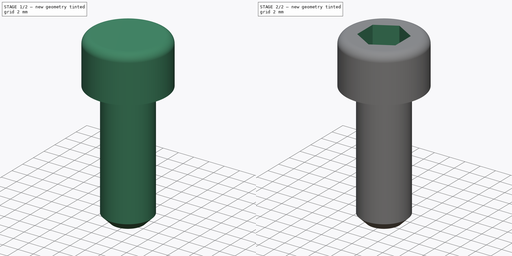
[diagram: build sequence overview — one tinted view per stage of 2, left to right]
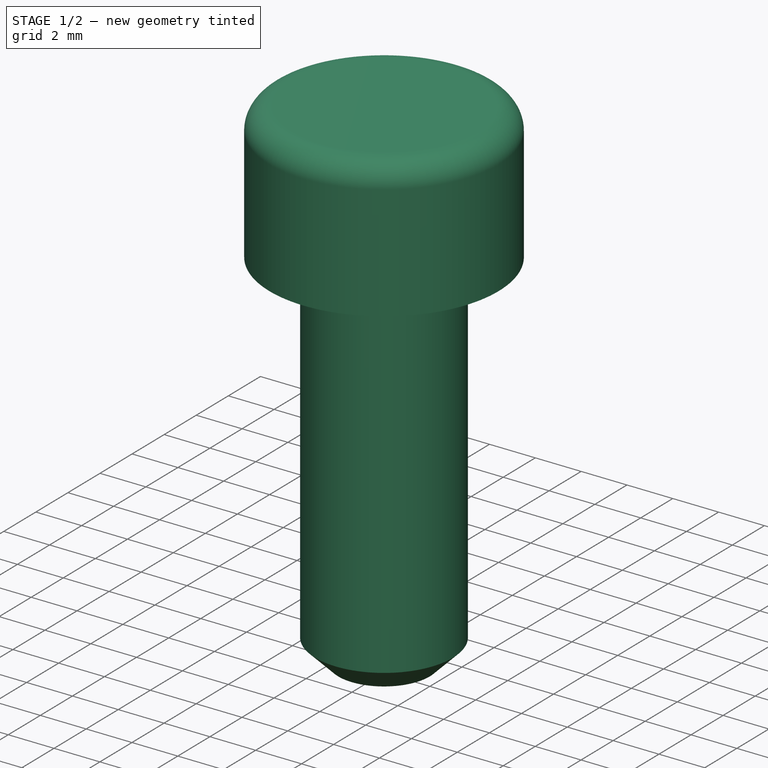
[diagram: stage 1 of 2 — iso view after this stage's code; geometry added in this stage tinted green]
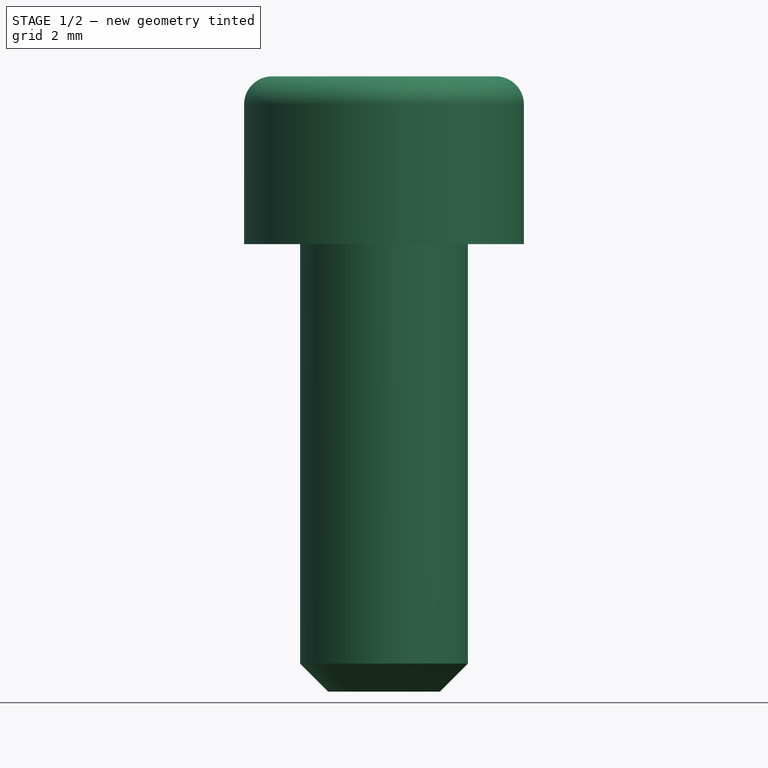
[diagram: stage 1 of 2 — front view after this stage's code; geometry added in this stage tinted green]
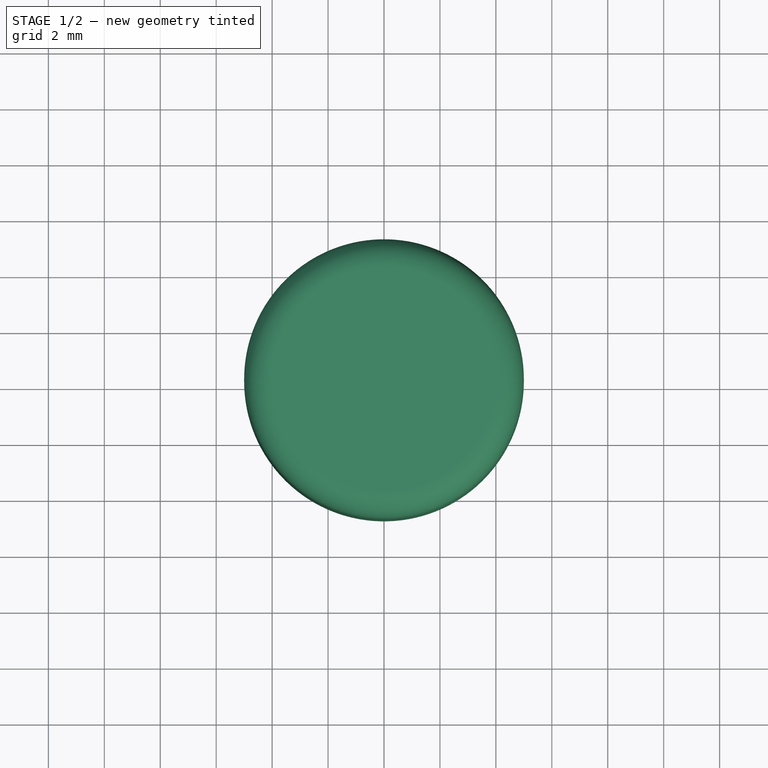
[diagram: stage 1 of 2 — top view after this stage's code; geometry added in this stage tinted green]
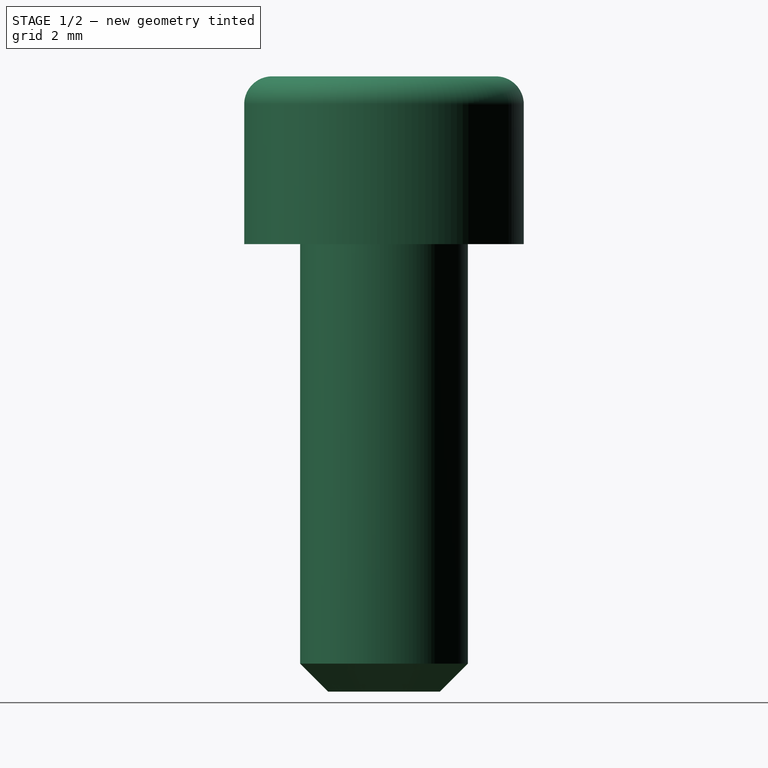
[diagram: stage 1 of 2 — right view after this stage's code; geometry added in this stage tinted green]
FCSTD DOCUMENT  (FreeCAD 0.20R29126 (Git))
Label: electric-motor-endcap-bolt
License: All rights reserved
LicenseURL: http://en.wikipedia.org/wiki/All_rights_reserved
objects: Sketcher::SketchObject×2, PartDesign::Revolution×1, PartDesign::Fillet×1, PartDesign::Plane×1, PartDesign::Pocket×1, PartDesign::Body×1
note: 10 computed .brp shape members not serialized (recipe doc carries the construction recipe); baked Part::Feature solids carry a one-line shape summary decoded from their .brp

FEATURE [Sketcher::SketchObject] Sketch
  FullyConstrained = true
  MapMode = 5
  Placement = pos=(0,0,0) rot=(1,0,0;1.5708rad)
  Support = -> [XZ_Plane]
  sketch-geometry (8):
    g0: LineSegment StartX=0 StartY=0 StartZ=0 EndX=0 EndY=22 EndZ=0
    g1: LineSegment StartX=0 StartY=22 StartZ=0 EndX=5 EndY=22 EndZ=0
    g2: LineSegment StartX=5 StartY=22 StartZ=0 EndX=5 EndY=16 EndZ=0
    g3: LineSegment StartX=5 StartY=16 StartZ=0 EndX=3 EndY=16 EndZ=0
    g4: LineSegment StartX=2 StartY=0 StartZ=0 EndX=0 EndY=0 EndZ=0
    g5: LineSegment StartX=3 StartY=1 StartZ=0 EndX=2 EndY=0 EndZ=0
    g6: LineSegment StartX=3 StartY=16 StartZ=0 EndX=3 EndY=12 EndZ=0
    g7: LineSegment StartX=3 StartY=12 StartZ=0 EndX=3 EndY=1 EndZ=0
  constraints (23):
    c: Coincident(g-1,g0)
    c: PointOnObject(g0,g-2)
    c: Coincident(g0,g1)
    c: Horizontal(g1)
    c: Coincident(g1,g2)
    c: Vertical(g2)
    c: Coincident(g2,g3)
    c: Horizontal(g3)
    c: Coincident(g4,g0)
    c: Horizontal(g4)
    c: Coincident(g5,g4)
    c: Coincident(g3,g6)
    c: Vertical(g6)
    c: Coincident(g6,g7)
    c: Coincident(g7,g5)
    c: Vertical(g7)
    c: DistanceX(g0,g5) = 3
    c: DistanceX(g1,g1) = 5
    c: DistanceY(g2,g2) = 6
    c: DistanceY(g6,g6) = 4
    c: DistanceY(g4,g6) = 12
    c: Angle(g7,g5) = 2.35619
    c: DistanceY(g4,g5) = 1
FEATURE [PartDesign::Revolution] Revolution
  Angle = 360
  Axis = (0,2e-16,1)
  Base = (0,0,0)
  Placement = pos=(0,0,0) rot=(1,0,0;1.5708rad)
  Profile = -> Sketch
  ReferenceAxis = -> Sketch [V_Axis]
  Reversed = true
FEATURE [PartDesign::Fillet] Fillet
  Base = -> Revolution [Edge1]
  BaseFeature = -> Revolution
  Placement = pos=(0,0,0) rot=(1,0,0;1.5708rad)
  Radius = 1
  SupportTransform = false
  UseAllEdges = false
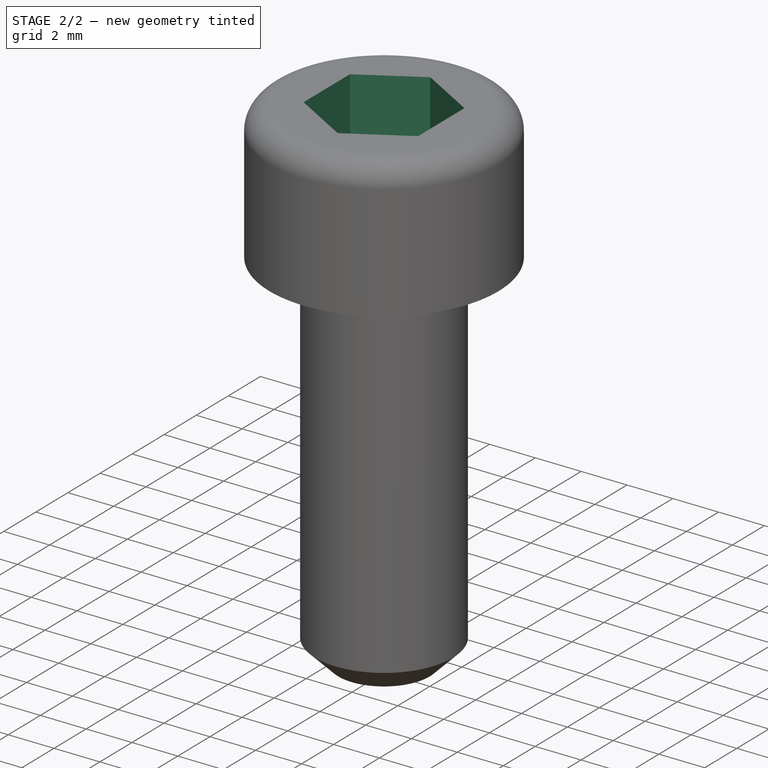
[diagram: stage 2 of 2 — iso view after this stage's code; geometry added in this stage tinted green]
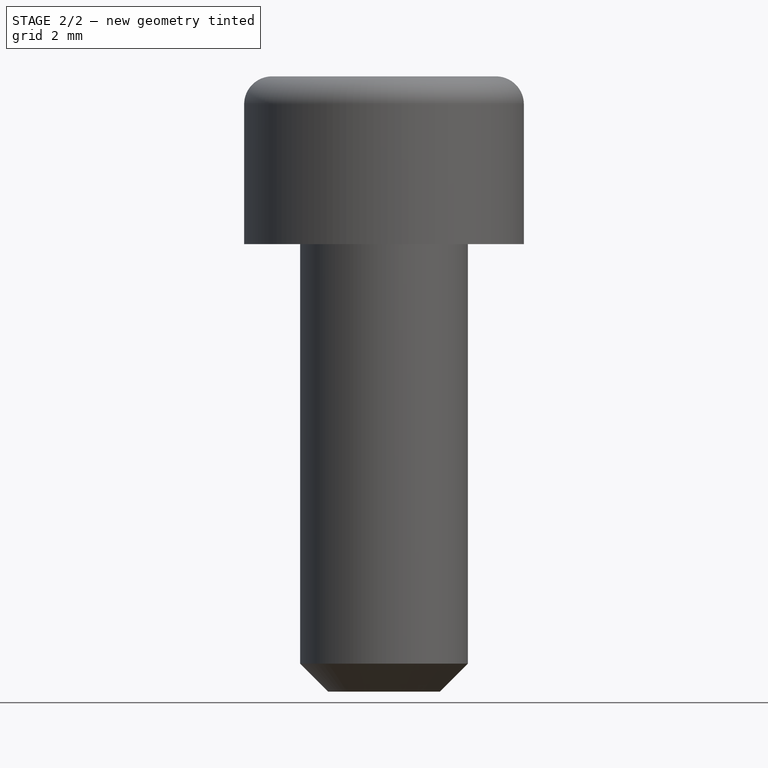
[diagram: stage 2 of 2 — front view after this stage's code; geometry added in this stage tinted green]
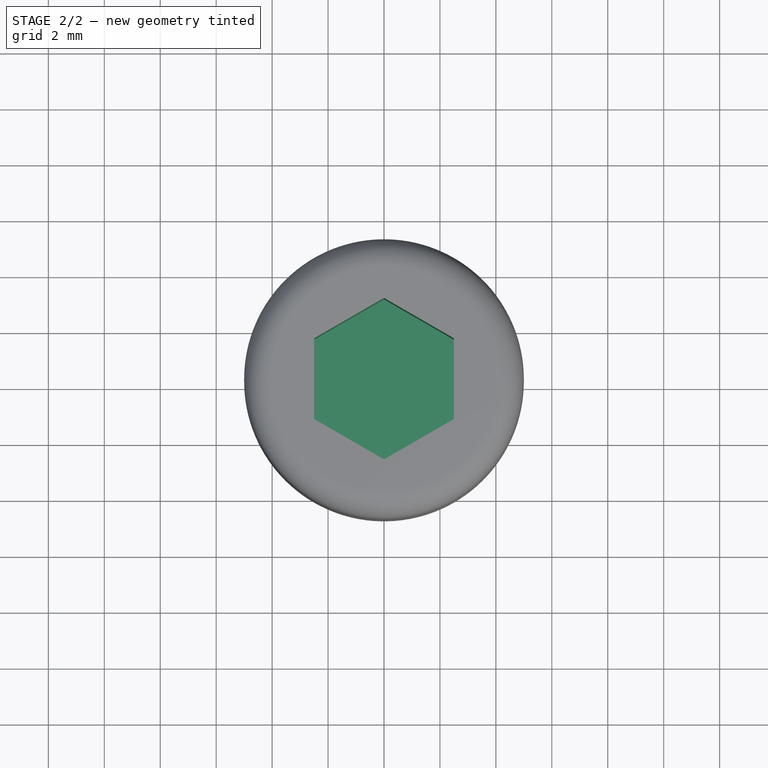
[diagram: stage 2 of 2 — top view after this stage's code; geometry added in this stage tinted green]
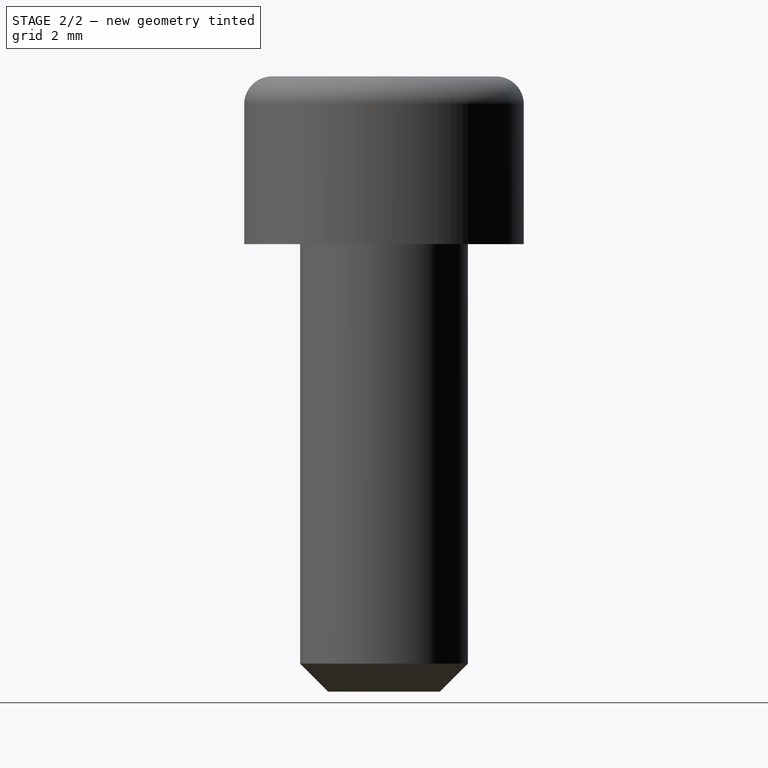
[diagram: stage 2 of 2 — right view after this stage's code; geometry added in this stage tinted green]
FEATURE [PartDesign::Plane] DatumPlane
  AttachmentOffset = pos=(0,0,22) rot=(0,0,1;0rad)
  Length = 60
  MapMode = 5
  Placement = pos=(0,0,22) rot=(0,0,1;0rad)
  ResizeMode = 0
  Support = -> [XY_Plane]
  Width = 60
FEATURE [Sketcher::SketchObject] Sketch001
  FullyConstrained = true
  MapMode = 5
  Placement = pos=(0,0,22) rot=(0,0,1;0rad)
  Support = -> [DatumPlane]
  sketch-geometry (7):
    g0: LineSegment StartX=2.5 StartY=1.44338 StartZ=0 EndX=0 EndY=2.88675 EndZ=0
    g1: LineSegment StartX=0 StartY=2.88675 StartZ=0 EndX=-2.5 EndY=1.44338 EndZ=0
    g2: LineSegment StartX=-2.5 StartY=1.44338 StartZ=0 EndX=-2.5 EndY=-1.44338 EndZ=0
    g3: LineSegment StartX=-2.5 StartY=-1.44338 StartZ=0 EndX=0 EndY=-2.88675 EndZ=0
    g4: LineSegment StartX=0 StartY=-2.88675 StartZ=0 EndX=2.5 EndY=-1.44338 EndZ=0
    g5: LineSegment StartX=2.5 StartY=-1.44338 StartZ=0 EndX=2.5 EndY=1.44338 EndZ=0
    g6: Circle CenterX=0 CenterY=0 CenterZ=0 NormalX=0 NormalY=0 NormalZ=1 AngleXU=0 Radius=2.88675
  constraints (16):
    c: Coincident(g0,g1)
    c: Coincident(g1,g2)
    c: Coincident(g2,g3)
    c: Coincident(g3,g4)
    c: Coincident(g4,g5)
    c: Coincident(g5,g0)
    c: Equal(g0, g1-g5) x5
    c: PointOnObject(g0,g6)
    c: PointOnObject(g1,g6)
    c: PointOnObject(g2,g6)
    c: PointOnObject(g3,g6)
    c: PointOnObject(g4,g6)
    c: PointOnObject(g5,g6)
    c: Coincident(g6,g-1)
    c: PointOnObject(g0,g-2)
    c: DistanceX(g1,g0) = 5
FEATURE [PartDesign::Pocket] Pocket
  BaseFeature = -> Fillet
  Direction = (0,0,-1)
  Length = 3
  Length2 = 5
  Placement = pos=(0,0,0) rot=(1,0,0;1.5708rad)
  Profile = -> Sketch001
  ReferenceAxis = -> Sketch001 [N_Axis]
  Type = 0
FEATURE [PartDesign::Body] Body
  Group = -> [Sketch,Revolution,Fillet,DatumPlane,Sketch001,Pocket]
  Origin = -> Origin
  Tip = -> Pocket
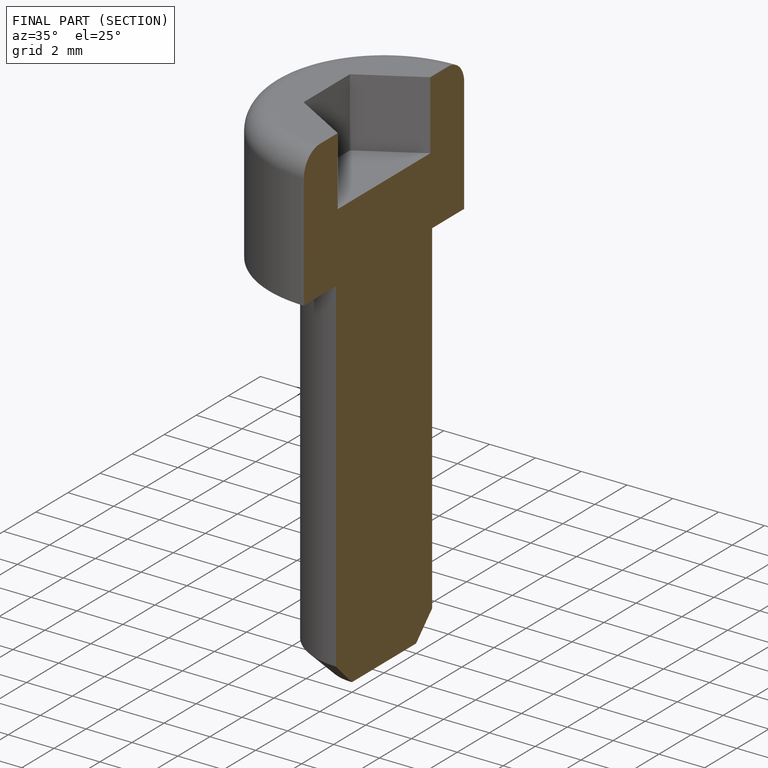
[diagram: finished part — half-section view (interior)]
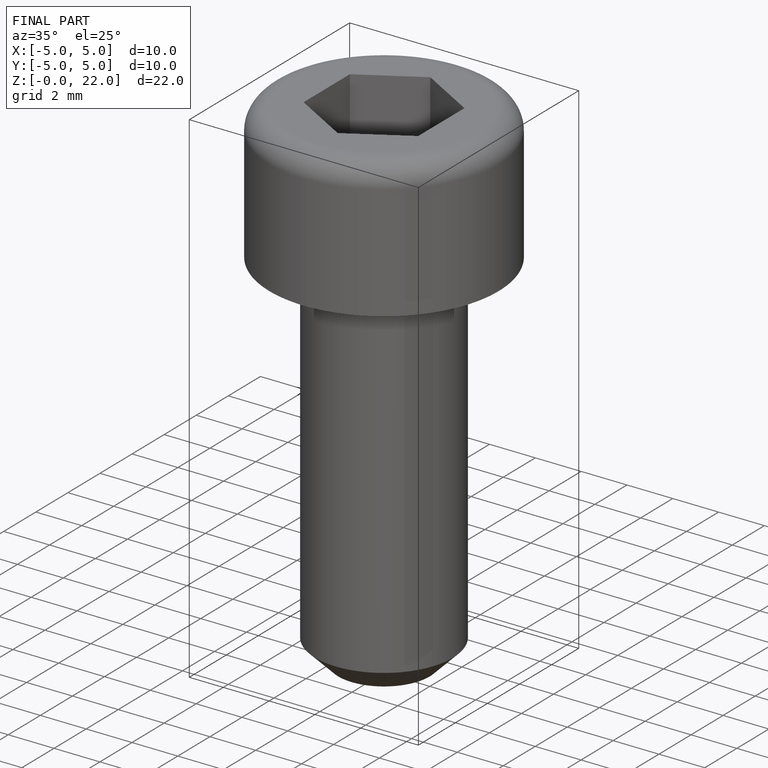
[diagram: finished part — iso view with bounding-box wireframe]
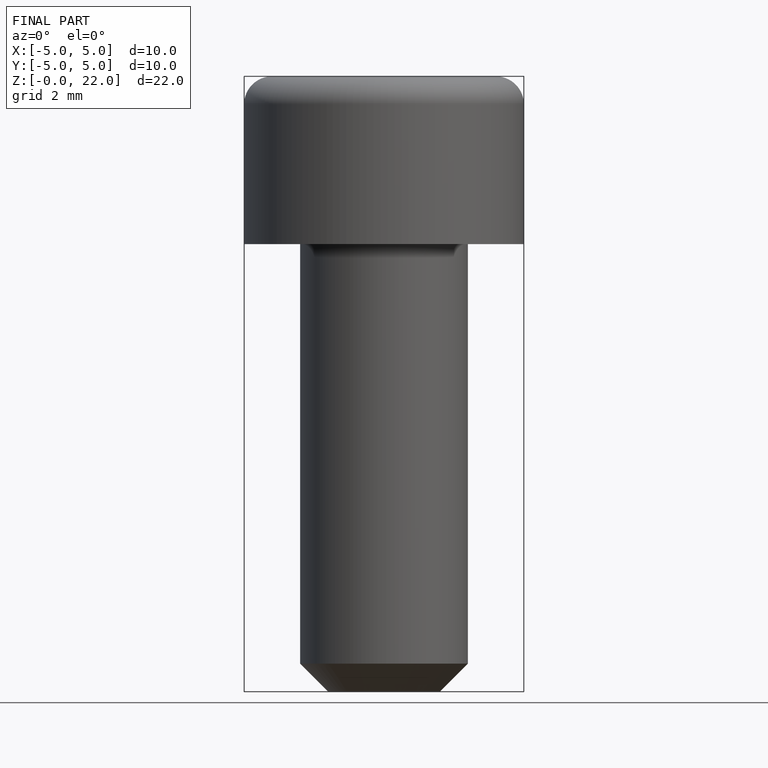
[diagram: finished part — front view with bounding-box wireframe]
